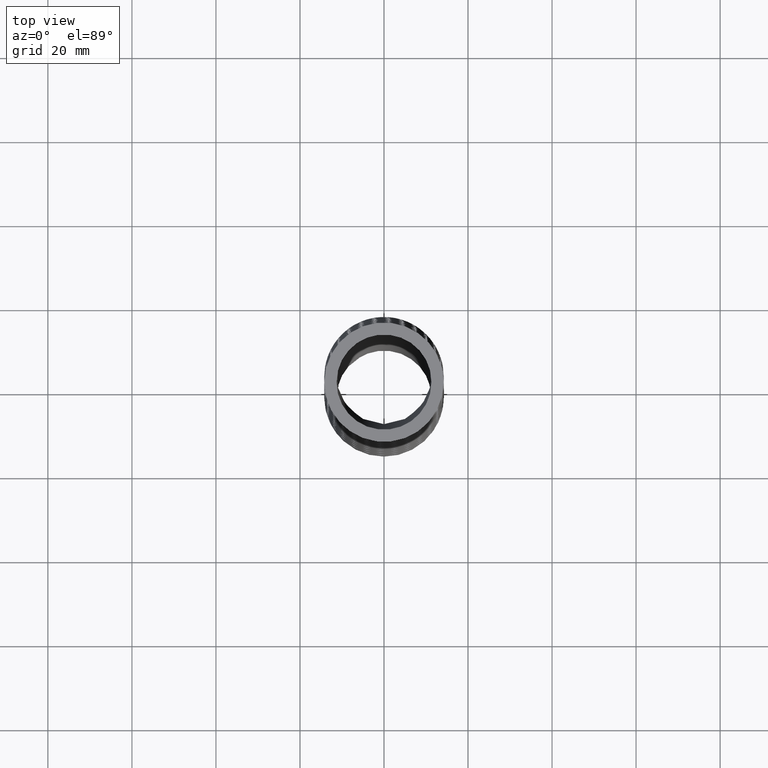
[diagram: clean part render]
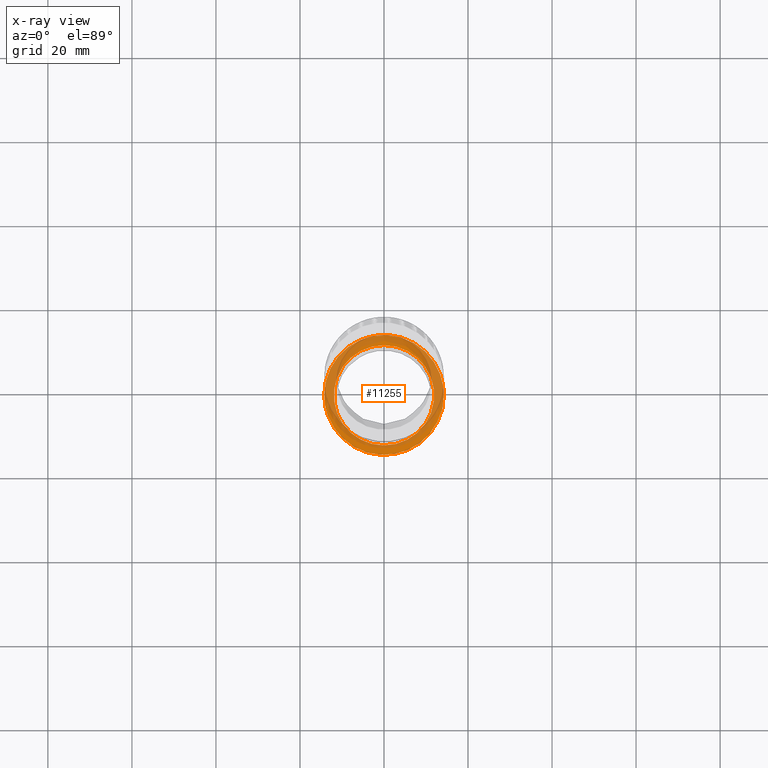
[diagram: x-ray — body ghosted, one internal face saturated and labeled with its STEP entity id]
A machine part, top view, then the same camera in x-ray: the body is ghosted and one INTERNAL B-rep face — a face not visible from any outside direction — is saturated and labeled: STEP entity #11255.
In plain terms, the highlighted planar face has unit normal (0, -0, 1).
Its self-contained STEP definition (entity closure, byte-faithful):
#5115 = CARTESIAN_POINT ( 'NONE',  ( 0.0000000000000000000, -0.4828095797720923200, -6.354636470994939200 ) ) ;
#5302 = CARTESIAN_POINT ( 'NONE',  ( 5.755839955992560900E-017, 0.4571904202279077900, -6.354636470994939200 ) ) ;
#5389 = DIRECTION ( 'NONE',  ( 0.0000000000000000000, -1.000000000000000000, 0.0000000000000000000 ) ) ;
#5390 = DIRECTION ( 'NONE',  ( 0.0000000000000000000, -1.734723475976807100E-018, 1.000000000000000000 ) ) ;
#5391 = CARTESIAN_POINT ( 'NONE',  ( 0.0000000000000000000, -0.01280957977209225300, -6.354636470994939200 ) ) ;
#5392 = AXIS2_PLACEMENT_3D ( 'NONE', #5391, #5390, #5389 ) ;
#5393 = CIRCLE ( 'NONE', #5392, 0.4700000000000000300 ) ;
#8276 = VERTEX_POINT ( 'NONE', #5115 ) ;
#8311 = VERTEX_POINT ( 'NONE', #5302 ) ;
#8326 = EDGE_CURVE ( 'NONE', #8276, #8311, #5393, .T. ) ;
#11254 = EDGE_LOOP ( 'NONE', ( #11257, #11258 ) ) ;
#11255 = ADVANCED_FACE ( 'NONE', ( #13520, #13519 ), #13564, .T. ) ;
#11256 = EDGE_LOOP ( 'NONE', ( #11284, #11273 ) ) ;
#11257 = ORIENTED_EDGE ( 'NONE', *, *, #20968, .F. ) ;
#11258 = ORIENTED_EDGE ( 'NONE', *, *, #13659, .F. ) ;
#11260 = EDGE_CURVE ( 'NONE', #8311, #8276, #13557, .T. ) ;
#11273 = ORIENTED_EDGE ( 'NONE', *, *, #11260, .F. ) ;
#11284 = ORIENTED_EDGE ( 'NONE', *, *, #8326, .F. ) ;
#13519 = FACE_BOUND ( 'NONE', #11256, .T. ) ;
#13520 = FACE_OUTER_BOUND ( 'NONE', #11254, .T. ) ;
#13553 = DIRECTION ( 'NONE',  ( 0.0000000000000000000, -1.000000000000000000, 0.0000000000000000000 ) ) ;
#13554 = DIRECTION ( 'NONE',  ( 0.0000000000000000000, -1.734723475976807100E-018, 1.000000000000000000 ) ) ;
#13555 = CARTESIAN_POINT ( 'NONE',  ( 0.0000000000000000000, -0.01280957977209225300, -6.354636470994939200 ) ) ;
#13556 = AXIS2_PLACEMENT_3D ( 'NONE', #13555, #13554, #13553 ) ;
#13557 = CIRCLE ( 'NONE', #13556, 0.4700000000000000300 ) ;
#13559 = DIRECTION ( 'NONE',  ( 0.0000000000000000000, -1.000000000000000000, -1.734723475976807100E-018 ) ) ;
#13560 = DIRECTION ( 'NONE',  ( 0.0000000000000000000, -1.734723475976807100E-018, 1.000000000000000000 ) ) ;
#13561 = CARTESIAN_POINT ( 'NONE',  ( 0.0000000000000000000, 0.5571904202279077700, -6.354636470994939200 ) ) ;
#13563 = AXIS2_PLACEMENT_3D ( 'NONE', #13561, #13560, #13559 ) ;
#13564 = PLANE ( 'NONE',  #13563 ) ;
#13659 = EDGE_CURVE ( 'NONE', #21002, #20974, #16887, .T. ) ;
#16865 = CARTESIAN_POINT ( 'NONE',  ( -0.09152703938932629800, 0.5440374711005243600, -6.354636470994942800 ) ) ;
#16866 = CARTESIAN_POINT ( 'NONE',  ( -0.1456995282620451300, 0.5331963633311198600, -6.354636470994940100 ) ) ;
#16867 = CARTESIAN_POINT ( 'NONE',  ( -0.1806458772932255900, 0.5225234872378978800, -6.354636470994935700 ) ) ;
#16868 = CARTESIAN_POINT ( 'NONE',  ( -0.2313461312328927400, 0.5014453106371802300, -6.354636470994936600 ) ) ;
#16869 = CARTESIAN_POINT ( 'NONE',  ( -0.2479576329900111100, 0.4935684329288976800, -6.354636470994941000 ) ) ;
#16870 = CARTESIAN_POINT ( 'NONE',  ( -0.2805835288071356100, 0.4760542457694149600, -6.354636470994938300 ) ) ;
#16871 = CARTESIAN_POINT ( 'NONE',  ( -0.2963575550671563300, 0.4665436798009168200, -6.354636470994939200 ) ) ;
#16872 = CARTESIAN_POINT ( 'NONE',  ( -0.3419620391472829600, 0.4359203931632370500, -6.354636470994941000 ) ) ;
#16873 = CARTESIAN_POINT ( 'NONE',  ( -0.3701621242064209200, 0.4126974293297676600, -6.354636470994941000 ) ) ;
#16874 = CARTESIAN_POINT ( 'NONE',  ( -0.4091164225548818400, 0.3735989705014843800, -6.354636470994939200 ) ) ;
#16875 = CARTESIAN_POINT ( 'NONE',  ( -0.4215785682364795500, 0.3597896652832316400, -6.354636470994934800 ) ) ;
#16876 = CARTESIAN_POINT ( 'NONE',  ( -0.4448416609523803700, 0.3313071453670446400, -6.354636470994934800 ) ) ;
#16877 = CARTESIAN_POINT ( 'NONE',  ( -0.4557077241265520800, 0.3165782219894433500, -6.354636470994939200 ) ) ;
#16878 = CARTESIAN_POINT ( 'NONE',  ( -0.4860573069405360600, 0.2709589406534544400, -6.354636470994938300 ) ) ;
#16879 = CARTESIAN_POINT ( 'NONE',  ( -0.5033461104498339100, 0.2385727382369135200, -6.354636470994936600 ) ) ;
#16880 = CARTESIAN_POINT ( 'NONE',  ( -0.5315700662190825400, 0.1701542632276217500, -6.354636470994938300 ) ) ;
#16881 = CARTESIAN_POINT ( 'NONE',  ( -0.5421145723527808200, 0.1351118287446004500, -6.354636470994943700 ) ) ;
#16882 = CARTESIAN_POINT ( 'NONE',  ( -0.5527836862009721800, 0.08134592431765565200, -6.354636470994942800 ) ) ;
#16883 = CARTESIAN_POINT ( 'NONE',  ( -0.5554757997724223400, 0.06322210540710786200, -6.354636470994938300 ) ) ;
#16884 = CARTESIAN_POINT ( 'NONE',  ( -0.5590896789586753400, 0.02656099589761698800, -6.354636470994939200 ) ) ;
#16885 = CARTESIAN_POINT ( 'NONE',  ( -0.5599999999999999400, 0.007994693562355726900, -6.354636470994939200 ) ) ;
#16886 = CARTESIAN_POINT ( 'NONE',  ( -0.5599999999999999400, -0.01037383061317370000, -6.354636470994938300 ) ) ;
#16887 = B_SPLINE_CURVE_WITH_KNOTS ( 'NONE', 3,
 ( #16886, #16885, #16884, #16883, #16882, #16881, #16880, #16879, #16878, #16877, #16876, #16875, #16874, #16873, #16872, #16871, #16870, #16869, #16868, #16867, #16866, #16865, #16937, #16936, #16935, #16934, #16933, #16932, #16931, #16930, #16929, #16928, #16927, #16926, #16925, #16924, #16922, #16921, #16920, #16919, #16918, #16917, #16916, #16915, #16914, #16913, #16912, #16911, #16910, #16909, #16908 ),
 .UNSPECIFIED., .F., .F.,
 ( 4, 2, 2, 2, 2, 2, 2, 2, 2, 2, 2, 2, 1, 2, 2, 2, 2, 2, 2, 2, 2, 2, 2, 2, 2, 4 ),
 ( 0.04501308613019766600, 0.04641976033644787400, 0.04782643454269807500, 0.05063978295519849100, 0.05345313136769890000, 0.05485980557394910800, 0.05626647978019931600, 0.05907982819269973200, 0.06048650239894993300, 0.06189317660520014100, 0.06470652501770055000, 0.06611319922395075800, 0.06751987343020096600, 0.06892654763645117400, 0.07033322184270138200, 0.07314657025520179800, 0.07455324446145200600, 0.07595991866770221400, 0.07877326708020263000, 0.08017994128645283800, 0.08158661549270303200, 0.08439996390520346200, 0.08580663811145367000, 0.08721331231770386400, 0.08861998652395407200, 0.09002666073020428000 ),
 .UNSPECIFIED. ) ;
#16908 = CARTESIAN_POINT ( 'NONE',  ( 0.5599999999999999400, -0.01037383061317494400, -6.354636470994944600 ) ) ;
#16909 = CARTESIAN_POINT ( 'NONE',  ( 0.5600000000000000500, 0.008150352145163309800, -6.354636470994944600 ) ) ;
#16910 = CARTESIAN_POINT ( 'NONE',  ( 0.5590801832514799000, 0.02668695601148498400, -6.354636470994944600 ) ) ;
#16911 = CARTESIAN_POINT ( 'NONE',  ( 0.5554677622339242400, 0.06327386756696296000, -6.354636470994945400 ) ) ;
#16912 = CARTESIAN_POINT ( 'NONE',  ( 0.5527784168332672300, 0.08137660542605476600, -6.354636470994940100 ) ) ;
#16913 = CARTESIAN_POINT ( 'NONE',  ( 0.5456665647500011900, 0.1172077952730631300, -6.354636470994942800 ) ) ;
#16914 = CARTESIAN_POINT ( 'NONE',  ( 0.5412440199309919200, 0.1349362390252105400, -6.354636470994944600 ) ) ;
#16915 = CARTESIAN_POINT ( 'NONE',  ( 0.5306486502492681100, 0.1700151437659953900, -6.354636470994940100 ) ) ;
#16916 = CARTESIAN_POINT ( 'NONE',  ( 0.5244545238126805400, 0.1874168450429454000, -6.354636470994942800 ) ) ;
#16917 = CARTESIAN_POINT ( 'NONE',  ( 0.5032839032790171800, 0.2386961651557282000, -6.354636470994943700 ) ) ;
#16918 = CARTESIAN_POINT ( 'NONE',  ( 0.4860507790768510100, 0.2709734832390090500, -6.354636470994939200 ) ) ;
#16919 = CARTESIAN_POINT ( 'NONE',  ( 0.4556775117693390700, 0.3166212659023829300, -6.354636470994939200 ) ) ;
#16920 = CARTESIAN_POINT ( 'NONE',  ( 0.4447936625189750600, 0.3313724640533166100, -6.354636470994939200 ) ) ;
#16921 = CARTESIAN_POINT ( 'NONE',  ( 0.4214663537153728900, 0.3599204606000884200, -6.354636470994938300 ) ) ;
#16922 = CARTESIAN_POINT ( 'NONE',  ( 0.4090149134566459200, 0.3737058875199246700, -6.354636470994943700 ) ) ;
#16924 = CARTESIAN_POINT ( 'NONE',  ( 0.3701347096334590700, 0.4127148359638635500, -6.354636470994943700 ) ) ;
#16925 = CARTESIAN_POINT ( 'NONE',  ( 0.3419426288595457900, 0.4359409260392142500, -6.354636470994944600 ) ) ;
#16926 = CARTESIAN_POINT ( 'NONE',  ( 0.2962487963110176900, 0.4666129469477849900, -6.354636470994946300 ) ) ;
#16927 = CARTESIAN_POINT ( 'NONE',  ( 0.2803591687113937700, 0.4761820318693322200, -6.354636470994939200 ) ) ;
#16928 = CARTESIAN_POINT ( 'NONE',  ( 0.2478343684218677600, 0.4936271792712886300, -6.354636470994939200 ) ) ;
#16929 = CARTESIAN_POINT ( 'NONE',  ( 0.2312577975760644300, 0.5014847322746852600, -6.354636470994940100 ) ) ;
#16930 = CARTESIAN_POINT ( 'NONE',  ( 0.1806110745023297700, 0.5225325438334927900, -6.354636470994938300 ) ) ;
#16931 = CARTESIAN_POINT ( 'NONE',  ( 0.1456327642875827300, 0.5332223290708361100, -6.354636470994939200 ) ) ;
#16932 = CARTESIAN_POINT ( 'NONE',  ( 0.09128488660641040400, 0.5440795807531807500, -6.354636470994939200 ) ) ;
#16933 = CARTESIAN_POINT ( 'NONE',  ( 0.07297186209064705800, 0.5467967404599358700, -6.354636470994936600 ) ) ;
#16934 = CARTESIAN_POINT ( 'NONE',  ( 0.03648448689578646900, 0.5503901238691596400, -6.354636470994936600 ) ) ;
#16935 = CARTESIAN_POINT ( 'NONE',  ( -2.273578749521221000E-005, 0.5521757254462402700, -6.354636470994938300 ) ) ;
#16936 = CARTESIAN_POINT ( 'NONE',  ( -0.03656921285939746700, 0.5503858937462559100, -6.354636470994940100 ) ) ;
#16937 = CARTESIAN_POINT ( 'NONE',  ( -0.07313566712187855000, 0.5467764664674750200, -6.354636470994940100 ) ) ;
#19933 = CARTESIAN_POINT ( 'NONE',  ( 0.5024932025019870400, -0.2589995435520039400, -6.354636470994940100 ) ) ;
#19934 = CARTESIAN_POINT ( 'NONE',  ( 0.5103212272727031300, -0.2423883678677796700, -6.354636470994935700 ) ) ;
#19935 = CARTESIAN_POINT ( 'NONE',  ( 0.5312807019336370800, -0.1916764132990743100, -6.354636470994936600 ) ) ;
#19936 = CARTESIAN_POINT ( 'NONE',  ( 0.5419113616974209300, -0.1567054913573275600, -6.354636470994941000 ) ) ;
#19937 = CARTESIAN_POINT ( 'NONE',  ( 0.5527280874478623900, -0.1024643951574303600, -6.354636470994939200 ) ) ;
#19938 = CARTESIAN_POINT ( 'NONE',  ( 0.5554612462069206100, -0.08409181241844968000, -6.354636470994934800 ) ) ;
#19939 = CARTESIAN_POINT ( 'NONE',  ( 0.5590886373815612300, -0.04734590430150262300, -6.354636470994936600 ) ) ;
#19940 = CARTESIAN_POINT ( 'NONE',  ( 0.5600000000000000500, -0.02889781235428465900, -6.354636470994945400 ) ) ;
#19941 = CARTESIAN_POINT ( 'NONE',  ( 0.5599999999999999400, -0.01037383061317494400, -6.354636470994944600 ) ) ;
#19944 = CARTESIAN_POINT ( 'NONE',  ( 0.5599999999999999400, -0.01037383061317494400, -6.354636470994944600 ) ) ;
#19945 = B_SPLINE_CURVE_WITH_KNOTS ( 'NONE', 3,
 ( #19941, #19940, #19939, #19938, #19937, #19936, #19935, #19934, #19933, #20018, #20017, #20015, #20014, #20013, #20012, #20011, #20010, #20009, #20008, #20007, #20006, #20005, #20004, #20003, #20002, #20001, #20000, #19999, #19998, #19997, #19996, #19995, #19994, #19993, #19992, #19991, #19990, #19989, #19988, #19987, #19986, #19984, #19983, #19982, #19981, #19979, #19978, #19977, #19976 ),
 .UNSPECIFIED., .F., .F.,
 ( 4, 2, 2, 2, 2, 2, 2, 2, 2, 2, 2, 2, 2, 2, 2, 2, 2, 2, 1, 2, 2, 2, 2, 2, 4 ),
 ( 0.0000000000000000000, 0.001406658941568681200, 0.002813317883137362400, 0.005626635766274723000, 0.007033294707843402600, 0.008439953649412083200, 0.01125327153254944100, 0.01265993047411812100, 0.01406658941568679800, 0.01687990729882414900, 0.01969322518196150300, 0.02109988412353017800, 0.02250654306509885400, 0.02531986094823620800, 0.02672651988980488000, 0.02813317883137355500, 0.03094649671451090900, 0.03235315565607958800, 0.03375981459764825600, 0.03516647353921693900, 0.03657313248078561400, 0.03938645036392296500, 0.04079310930549164700, 0.04219976824706031500, 0.04501308613019766600 ),
 .UNSPECIFIED. ) ;
#19976 = CARTESIAN_POINT ( 'NONE',  ( -0.5599999999999999400, -0.01037383061317370000, -6.354636470994938300 ) ) ;
#19977 = CARTESIAN_POINT ( 'NONE',  ( -0.5599999999999999400, -0.04711048030806841400, -6.354636470994936600 ) ) ;
#19978 = CARTESIAN_POINT ( 'NONE',  ( -0.5564409735539354000, -0.08346236734309338300, -6.354636470994936600 ) ) ;
#19979 = CARTESIAN_POINT ( 'NONE',  ( -0.5457944829426543100, -0.1374163608213860300, -6.354636470994935700 ) ) ;
#19981 = CARTESIAN_POINT ( 'NONE',  ( -0.5413311504261456600, -0.1553802042001975500, -6.354636470994941000 ) ) ;
#19982 = CARTESIAN_POINT ( 'NONE',  ( -0.5306593002834629800, -0.1907529744849360600, -6.354636470994939200 ) ) ;
#19983 = CARTESIAN_POINT ( 'NONE',  ( -0.5244949889318444300, -0.2080450511208993500, -6.354636470994943700 ) ) ;
#19984 = CARTESIAN_POINT ( 'NONE',  ( -0.5035894488515317800, -0.2587728903551511600, -6.354636470994941000 ) ) ;
#19986 = CARTESIAN_POINT ( 'NONE',  ( -0.4864585882180484400, -0.2910711978679699800, -6.354636470994941000 ) ) ;
#19987 = CARTESIAN_POINT ( 'NONE',  ( -0.4558377763138051800, -0.3371746071552010900, -6.354636470994940100 ) ) ;
#19988 = CARTESIAN_POINT ( 'NONE',  ( -0.4448197309101408200, -0.3521040911208523900, -6.354636470994939200 ) ) ;
#19989 = CARTESIAN_POINT ( 'NONE',  ( -0.4216096827483285500, -0.3805263618034767600, -6.354636470994939200 ) ) ;
#19990 = CARTESIAN_POINT ( 'NONE',  ( -0.3971187552535272400, -0.4076799347450675300, -6.354636470994945400 ) ) ;
#19991 = CARTESIAN_POINT ( 'NONE',  ( -0.3700988983422284200, -0.4323286292369027900, -6.354636470994938300 ) ) ;
#19992 = CARTESIAN_POINT ( 'NONE',  ( -0.3417943628731052700, -0.4557048628947715800, -6.354636470994938300 ) ) ;
#19993 = CARTESIAN_POINT ( 'NONE',  ( -0.3269122424351147400, -0.4668123270116590900, -6.354636470994938300 ) ) ;
#19994 = CARTESIAN_POINT ( 'NONE',  ( -0.2809956958811565800, -0.4976575897252976100, -6.354636470994938300 ) ) ;
#19995 = CARTESIAN_POINT ( 'NONE',  ( -0.2487884738286228200, -0.5149466720246921300, -6.354636470994939200 ) ) ;
#19996 = CARTESIAN_POINT ( 'NONE',  ( -0.1981354521723710500, -0.5360755299360749900, -6.354636470994936600 ) ) ;
#19997 = CARTESIAN_POINT ( 'NONE',  ( -0.1808579587989498400, -0.5423119688939865800, -6.354636470994939200 ) ) ;
#19998 = CARTESIAN_POINT ( 'NONE',  ( -0.1454905953630626600, -0.5531183373080824600, -6.354636470994939200 ) ) ;
#19999 = CARTESIAN_POINT ( 'NONE',  ( -0.1275721228312023900, -0.5576293404690557700, -6.354636470994943700 ) ) ;
#20000 = CARTESIAN_POINT ( 'NONE',  ( -0.07367333323163259600, -0.5684201576753570300, -6.354636470994942800 ) ) ;
#20001 = CARTESIAN_POINT ( 'NONE',  ( -0.03732460443517756500, -0.5720541283505515800, -6.354636470994936600 ) ) ;
#20002 = CARTESIAN_POINT ( 'NONE',  ( 0.01782936696322700100, -0.5721089885147502300, -6.354636470994935700 ) ) ;
#20003 = CARTESIAN_POINT ( 'NONE',  ( 0.03640872356547724500, -0.5712062766643228900, -6.354636470994940100 ) ) ;
#20004 = CARTESIAN_POINT ( 'NONE',  ( 0.07303362757676640200, -0.5675990347252958300, -6.354636470994940100 ) ) ;
#20005 = CARTESIAN_POINT ( 'NONE',  ( 0.09114521388643527500, -0.5649033572604196300, -6.354636470994935700 ) ) ;
#20006 = CARTESIAN_POINT ( 'NONE',  ( 0.1448906080352741500, -0.5541989208449975600, -6.354636470994939200 ) ) ;
#20007 = CARTESIAN_POINT ( 'NONE',  ( 0.1799756806578666500, -0.5435841204427468400, -6.354636470994936600 ) ) ;
#20008 = CARTESIAN_POINT ( 'NONE',  ( 0.2483769479300002600, -0.5151830954905258800, -6.354636470994938300 ) ) ;
#20009 = CARTESIAN_POINT ( 'NONE',  ( 0.2806158683014476900, -0.4978521622199790800, -6.354636470994941000 ) ) ;
#20010 = CARTESIAN_POINT ( 'NONE',  ( 0.3261521112023452200, -0.4673523119051202200, -6.354636470994940100 ) ) ;
#20011 = CARTESIAN_POINT ( 'NONE',  ( 0.3408570015291314500, -0.4564295332653550700, -6.354636470994936600 ) ) ;
#20012 = CARTESIAN_POINT ( 'NONE',  ( 0.3692974163442017700, -0.4330371021215306800, -6.354636470994938300 ) ) ;
#20013 = CARTESIAN_POINT ( 'NONE',  ( 0.3830565421403570000, -0.4205288870238855800, -6.354636470994935700 ) ) ;
#20014 = CARTESIAN_POINT ( 'NONE',  ( 0.4219679047922529900, -0.3814881289121810300, -6.354636470994936600 ) ) ;
#20015 = CARTESIAN_POINT ( 'NONE',  ( 0.4450938228216614300, -0.3532185293387474200, -6.354636470994938300 ) ) ;
#20017 = CARTESIAN_POINT ( 'NONE',  ( 0.4756005292083903500, -0.3074826037076059400, -6.354636470994939200 ) ) ;
#20018 = CARTESIAN_POINT ( 'NONE',  ( 0.4850993537432533000, -0.2916172324548272900, -6.354636470994939200 ) ) ;
#20114 = CARTESIAN_POINT ( 'NONE',  ( -0.5599999999999999400, -0.01037383061317370000, -6.354636470994938300 ) ) ;
#20968 = EDGE_CURVE ( 'NONE', #20974, #21002, #19945, .T. ) ;
#20974 = VERTEX_POINT ( 'NONE', #19944 ) ;
#21002 = VERTEX_POINT ( 'NONE', #20114 ) ;